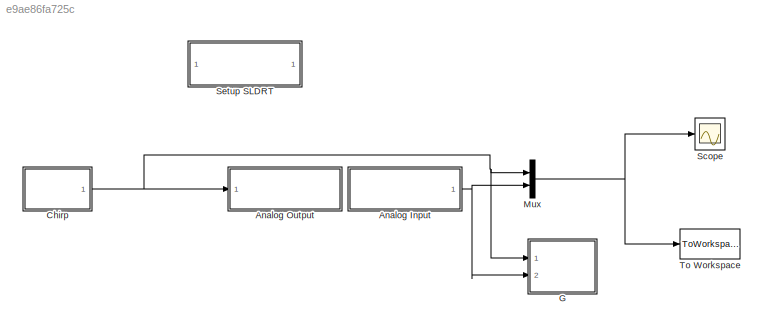
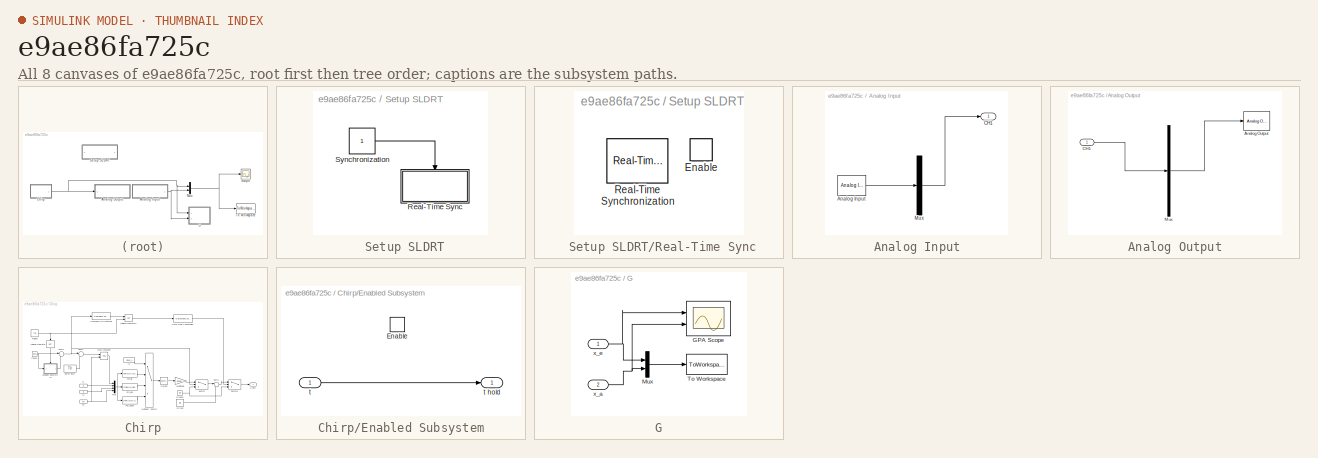
[diagram: thumbnail index - all 8 canvases of the model, root first then tree order]
MODEL slx_e9ae86fa725c
KIND model
CONFIG AbsTol = auto
CONFIG FixedStep = auto
CONFIG InitFcn = Ts=eval(get_param([bdroot,'/ Setup SLDRT'],'Ts'));
CONFIG MaxStep = auto
CONFIG MinStep = auto
CONFIG PostLoadFcn = try\nif isempty(which('ZHAWcbfcn'));\ncallback_fid07124=fopen('ZHAWcbfcn.m','w');\n[~]=fprintf(callback_fid07124,'%s',get_param([bdroot,'/ Setup SLDRT'],'ClipboardFcn'));\n[~]=fclose(callback_fid07124);\nsetpref('ZHAW_SLDRT_lib','cb_fcn',which('ZHAWcbfcn'))\nclear callback_fid07124\nend\ncatch\nclear callback_fid07124\nend\nTs=eval(get_param([bdroot,'/ Setup SLDRT'],'Ts'));
CONFIG RelTol = 1e-3
CONFIG SampleTimeConstraint = Unconstrained
CONFIG Solver = ode3
CONFIG SolverMode = Auto
CONFIG SolverName = ode3
CONFIG StartTime = 0.0
CONFIG StopTime = 10.0
BLOCK [SubSystem]  Setup SLDRT
  AttributesFormatString = Sample Time: %<Ts>
  ClipboardFcn = function varout = ZHAWcbfcn(mode,option)\n%ZHAWcbfcn callback function for ZHAW SLDRT library.\n% Version R2016a\n\n% Otto Fluder / ZHAW / IMS / <email>\n\nif 0\n    %set_param(gcb,'LinkStatus',getpref('ZHAW_SLDRT_lib','LibraryLinkStatus','none'));\n    %set_param(gcb,'OpenFcn','open_system(gcb,''Mask'')') %\n    %open_system(gcb,'Mask');\n    %set_param(gcb,'OpenFcn','')\n    return\nend\n\nif nargin==0\n    mo...<+60342ch>
  CopyFcn = try\n    if isempty(which('ZHAWcbfcn'));\n        callback_fid07124=fopen('ZHAWcbfcn.m','w');\n        [~]=fprintf(callback_fid07124,'%s',get_param(gcb,'ClipboardFcn'));\n        [~]=fclose(callback_fid07124);\n        setpref('ZHAW_SLDRT_lib','cb_fcn',which('ZHAWcbfcn'));\n        clear callback_fid07124;\n    end\ncatch\n    clear callback_fid07124;\nend\n\nset_param(gcb,'LinkStatus',getpref('ZHAW_SLDRT_lib...<+207ch>
  DeleteFcn = try\nset_param(gcs,'InitFcn','');\nset_param(gcs,'PostLoadFcn','');\nset_param(bdroot,'SimulationMode','normal')\nend
  DestroyFcn = try\nset_param(gcs,'CloseFcn','');\nend
  InitFcn = try\n    if isempty(which('ZHAWcbfcn'));\n        callback_fid07124=fopen('ZHAWcbfcn.m','w');\n        [~]=fprintf(callback_fid07124,'%s',get_param(gcb,'ClipboardFcn'));\n        [~]=fclose(callback_fid07124);\n        setpref('ZHAW_SLDRT_lib','cb_fcn',which('ZHAWcbfcn'));\n        clear callback_fid07124;\n    end\ncatch\n    clear callback_fid07124;\nend
  OpenFcn = try\n    if isempty(which('ZHAWcbfcn'));\n        callback_fid07124=fopen('ZHAWcbfcn.m','w');\n        [~]=fprintf(callback_fid07124,'%s',get_param(gcb,'ClipboardFcn'));\n        [~]=fclose(callback_fid07124);\n        setpref('ZHAW_SLDRT_lib','cb_fcn',which('ZHAWcbfcn'));\n        clear callback_fid07124;\n    end\ncatch\n    clear callback_fid07124;\nend\n\nTs=eval(get_param([bdroot,'/ Setup SLDRT'],'Ts'));...<+144ch>
  Ports = []
  RequestExecContextInheritance = off
  Variant = off
BLOCK [SubSystem]  Setup SLDRT/Real-Time Sync
  Ports = [0, 0, 1]
  RequestExecContextInheritance = off
  Variant = off
BLOCK [EnablePort]  Setup SLDRT/Real-Time Sync/Enable
  Ports = []
BLOCK [Reference]  Setup SLDRT/Real-Time Sync/Real-Time Synchronization  REF=sldrtlib/Real-Time
Synchronization
  Ports = []
  SourceBlock = sldrtlib/Real-Time\nSynchronization
  SourceType = Simulink Desktop Real-Time Synchronization
BLOCK [Constant]  Setup SLDRT/Synchronization
BLOCK [SubSystem] Analog Input
  AttributesFormatString = %<couple>
  CopyFcn = try\nZHAWcbfcn('CopyIOblock') \nend\nset_param(gcb,'OpenFcn','try ZHAWcbfcn(''openMask''); end')
  OpenFcn = try ZHAWcbfcn('openMask'); end
  Ports = [0, 1]
  RequestExecContextInheritance = off
  Variant = off
BLOCK [Reference] Analog Input/Analog Input  REF=sldrtlib/Analog Input
  AttributesFormatString = National Instruments\nPCIe-6321 [auto]
  Ports = [0, 1]
  SourceBlock = sldrtlib/Analog Input
  SourceType = Simulink Desktop Real-Time Analog Input
BLOCK [Outport] Analog Input/CH1
  IconDisplay = Port number
BLOCK [Demux] Analog Input/Mux
  DisplayOption = bar
  Outputs = 1
  Ports = [1, 1]
BLOCK [SubSystem] Analog Output
  CopyFcn = try\nZHAWcbfcn('CopyIOblock') \nend\nset_param(gcb,'OpenFcn','try ZHAWcbfcn(''openMask''); end')
  OpenFcn = try ZHAWcbfcn('openMask'); end
  Ports = [1]
  RequestExecContextInheritance = off
  Variant = off
BLOCK [Reference] Analog Output/Analog Output  REF=sldrtlib/Analog Output
  AttributesFormatString = National Instruments\nPCIe-6321 [auto]
  Ports = [1]
  SourceBlock = sldrtlib/Analog Output
  SourceType = Simulink Desktop Real-Time Analog Output
BLOCK [Inport] Analog Output/CH1
  IconDisplay = Port number
BLOCK [Mux] Analog Output/Mux
  DisplayOption = bar
  Inputs = 1
  Ports = [1, 1]
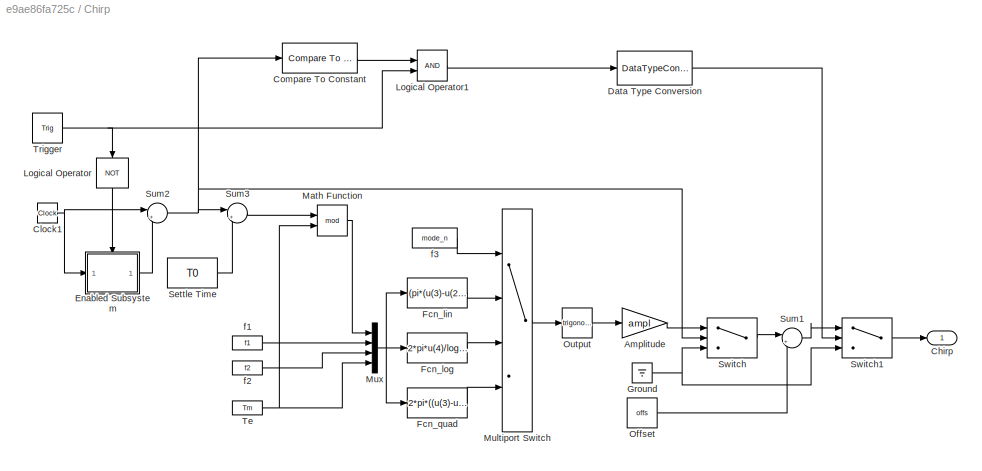
BLOCK [SubSystem] Chirp
  CopyFcn = set_param(gcb,'LinkStatus',getpref('ZHAW_SLDRT_lib','LibraryLinkStatus','none'));\ntry\n set_param(gcb,'f2',num2str(1/evalin('base','Ts')/2))\nend\ntry\n ZHAWcbfcn('SimTime');\nend\ntry\n ZHAWcbfcn('defaultchirp');\nend\nset_param(gcb,'OpenFcn','try ZHAWcbfcn(''openMask''); end')
  LoadFcn = try\n ZHAWcbfcn('defaultchirp');\nend
  OpenFcn = try ZHAWcbfcn('openMask'); end
  Ports = [0, 1]
  RequestExecContextInheritance = off
  Variant = off
BLOCK [Gain] Chirp/Amplitude
  Gain = ampl
  OutDataTypeStr = Inherit: Inherit via internal rule
  ParamDataTypeStr = Inherit: Inherit via internal rule
  SaturateOnIntegerOverflow = off
BLOCK [Outport] Chirp/Chirp
  IconDisplay = Port number
BLOCK [Clock] Chirp/Clock1
  DisableCoverage = on
BLOCK [Reference] Chirp/Compare To Constant  REF=simulink/Logic and Bit
Operations/Compare
To Constant
  Ports = [1, 1]
  SourceBlock = simulink/Logic and Bit\nOperations/Compare\nTo Constant
  SourceType = Compare To Constant
BLOCK [DataTypeConversion] Chirp/Data Type Conversion
  RndMeth = Floor
  SaturateOnIntegerOverflow = off
BLOCK [SubSystem] Chirp/Enabled Subsystem
  Ports = [1, 1, 1]
  RequestExecContextInheritance = off
  TreatAsAtomicUnit = on
  Variant = off
BLOCK [EnablePort] Chirp/Enabled Subsystem/Enable
  Ports = []
BLOCK [Inport] Chirp/Enabled Subsystem/t
  IconDisplay = Port number
BLOCK [Outport] Chirp/Enabled Subsystem/t hold
  IconDisplay = Port number
BLOCK [Fcn] Chirp/Fcn_lin
  Expr = (pi*(u(3)-u(2))/u(4)*u(1)+2*pi*u(2))*u(1)
BLOCK [Fcn] Chirp/Fcn_log
  Expr = 2*pi*u(4)/log(u(3)/u(2))*(u(2)*(u(3)/u(2))^(u(1)/u(4))-u(2))
BLOCK [Fcn] Chirp/Fcn_quad
  Expr = 2*pi*((u(3)-u(2))*u(4)^(-2)/(1+2)*u(1)^(1+2)+u(2)*u(1))
BLOCK [Ground] Chirp/Ground
BLOCK [Logic] Chirp/Logical Operator
  AllPortsSameDT = off
  Operator = NOT
  OutDataTypeStr = boolean
  Ports = [1, 1]
BLOCK [Logic] Chirp/Logical Operator1
  AllPortsSameDT = off
  OutDataTypeStr = boolean
  Ports = [2, 1]
BLOCK [Math] Chirp/Math Function
  Operator = mod
  Ports = [2, 1]
BLOCK [MultiPortSwitch] Chirp/Multiport Switch
  InputSameDT = off
  Ports = [4, 1]
  SaturateOnIntegerOverflow = off
BLOCK [Mux] Chirp/Mux
  DisplayOption = bar
  Ports = [4, 1]
BLOCK [Constant] Chirp/Offset
  Value = offs
BLOCK [Trigonometry] Chirp/Output
  Ports = [1, 1]
BLOCK [Constant] Chirp/Settle Time
  Value = T0
BLOCK [Sum] Chirp/Sum1
  IconShape = round
  InputSameDT = off
  Inputs = |++
  OutDataTypeStr = Inherit: Inherit via internal rule
  Ports = [2, 1]
  SaturateOnIntegerOverflow = off
BLOCK [Sum] Chirp/Sum2
  IconShape = round
  InputSameDT = off
  Inputs = |+-
  OutDataTypeStr = Inherit: Inherit via internal rule
  Ports = [2, 1]
  SaturateOnIntegerOverflow = off
BLOCK [Sum] Chirp/Sum3
  IconShape = round
  InputSameDT = off
  Inputs = |+-
  OutDataTypeStr = Inherit: Inherit via internal rule
  Ports = [2, 1]
  SaturateOnIntegerOverflow = off
BLOCK [Switch] Chirp/Switch
  InputSameDT = off
  SaturateOnIntegerOverflow = off
  Threshold = T0
BLOCK [Switch] Chirp/Switch1
  Criteria = u2 ~= 0
  InputSameDT = off
  SaturateOnIntegerOverflow = off
BLOCK [Constant] Chirp/Te
  Value = Tm
BLOCK [Constant] Chirp/Trigger
  Value = Trig
BLOCK [Constant] Chirp/f1
  Value = f1
BLOCK [Constant] Chirp/f2
  Value = f2
BLOCK [Constant] Chirp/f3
  Value = mode_n
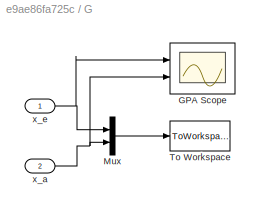
BLOCK [SubSystem] G
  CopyFcn = try\nZHAWcbfcn('copyGPA');\nend\nset_param(gcb,'OpenFcn','try ZHAWcbfcn(''openMask''); end')
  LoadFcn = try\n ZHAWcbfcn('default');\nend
  NameChangeFcn = try ZHAWcbfcn('namechangeGPA'); end
  OpenFcn = try ZHAWcbfcn('openMask'); end
  Ports = [2]
  RequestExecContextInheritance = off
  StopFcn = try\n ZHAWcbfcn('bode');\nend
  Variant = off
BLOCK [Scope] G/GPA Scope
  CopyFcn = try ZHAWcbfcn('copyScope'); end
  NameChangeFcn = try ZHAWcbfcn('namechangeScope'); end
  NumInputPorts = 2
  Ports = [2]
  ScopeSpecificationString = Simulink.scopes.TimeScopeBlockCfg('CurrentConfiguration', extmgr.ConfigurationSet(extmgr.Configuration('Core','General UI',true,'FigureColor',[0.941176470588235 0.941176470588235 0.941176470588235]),extmgr.Configuration('Core','Source UI',true),extmgr.Configuration('Sources','WiredSimulink',true,'DataLoggingDecimation','1','DataLoggingSaveFormat','StructureWithTime','DataLoggingVariableName','Scop...<+3377ch>
BLOCK [Mux] G/Mux
  DisplayOption = bar
  Inputs = 2
  Ports = [2, 1]
BLOCK [ToWorkspace] G/To Workspace
  MaxDataPoints = inf
  Ports = [1]
  SampleTime = Ts
  SaveFormat = Structure With Time
  VariableName = G_td
BLOCK [Inport] G/x_a
  IconDisplay = Port number
  Port = 2
BLOCK [Inport] G/x_e
  IconDisplay = Port number
BLOCK [Mux] Mux
  DisplayOption = bar
  Inputs = 2
  Ports = [2, 1]
BLOCK [Scope] Scope
  Ports = [1]
  ScopeSpecificationString = Simulink.scopes.TimeScopeBlockCfg('CurrentConfiguration', extmgr.ConfigurationSet(extmgr.Configuration('Core','General UI',true),extmgr.Configuration('Core','Source UI',true),extmgr.Configuration('Sources','WiredSimulink',true),extmgr.Configuration('Visuals','Time Domain',true,'SerializedDisplays',{struct('MinYLimReal','-11.07326','MaxYLimReal','10.72047','YLabelReal','','MinYLimMag','0.00000','Ma...<+1419ch>
BLOCK [ToWorkspace] To Workspace
  FixptAsFi = on
  MaxDataPoints = inf
  Ports = [1]
  SampleTime = -1
  Save2DSignal = 3-D array (concatenate along third dimension)
  SaveFormat = Structure With Time
  VariableName = simout
LINE  Setup SLDRT/Synchronization:1 ->  Setup SLDRT/Real-Time Sync:enable
LINE Analog Input/Analog Input:1 -> Analog Input/Mux:1
LINE Analog Input/Mux:1 -> Analog Input/CH1:1
NET Analog Input:1 -> G:2, Mux:2
LINE Analog Output/CH1:1 -> Analog Output/Mux:1
LINE Analog Output/Mux:1 -> Analog Output/Analog Output:1
LINE Chirp/Amplitude:1 -> Chirp/Switch:1
NET Chirp/Clock1:1 -> Chirp/Enabled Subsystem:1, Chirp/Sum2:1
LINE Chirp/Compare To Constant:1 -> Chirp/Logical Operator1:1
LINE Chirp/Data Type Conversion:1 -> Chirp/Switch1:2
LINE Chirp/Enabled Subsystem/t:1 -> Chirp/Enabled Subsystem/t hold:1
LINE Chirp/Enabled Subsystem:1 -> Chirp/Sum2:2
LINE Chirp/Fcn_lin:1 -> Chirp/Multiport Switch:2
LINE Chirp/Fcn_log:1 -> Chirp/Multiport Switch:3
LINE Chirp/Fcn_quad:1 -> Chirp/Multiport Switch:4
NET Chirp/Ground:1 -> Chirp/Switch1:3, Chirp/Switch:3
LINE Chirp/Logical Operator1:1 -> Chirp/Data Type Conversion:1
LINE Chirp/Logical Operator:1 -> Chirp/Enabled Subsystem:enable
LINE Chirp/Math Function:1 -> Chirp/Mux:1
LINE Chirp/Multiport Switch:1 -> Chirp/Output:1
NET Chirp/Mux:1 -> Chirp/Fcn_lin:1, Chirp/Fcn_log:1, Chirp/Fcn_quad:1
LINE Chirp/Offset:1 -> Chirp/Sum1:2
LINE Chirp/Output:1 -> Chirp/Amplitude:1
LINE Chirp/Settle Time:1 -> Chirp/Sum3:2
LINE Chirp/Sum1:1 -> Chirp/Switch1:1
NET Chirp/Sum2:1 -> Chirp/Compare To Constant:1, Chirp/Sum3:1, Chirp/Switch:2
LINE Chirp/Sum3:1 -> Chirp/Math Function:1
LINE Chirp/Switch1:1 -> Chirp/Chirp:1
LINE Chirp/Switch:1 -> Chirp/Sum1:1
NET Chirp/Te:1 -> Chirp/Math Function:2, Chirp/Mux:4
NET Chirp/Trigger:1 -> Chirp/Logical Operator1:2, Chirp/Logical Operator:1
LINE Chirp/f1:1 -> Chirp/Mux:2
LINE Chirp/f2:1 -> Chirp/Mux:3
LINE Chirp/f3:1 -> Chirp/Multiport Switch:1
NET Chirp:1 -> Analog Output:1, G:1, Mux:1
LINE G/Mux:1 -> G/To Workspace:1
NET G/x_a:1 -> G/GPA Scope:2, G/Mux:2
NET G/x_e:1 -> G/GPA Scope:1, G/Mux:1
NET Mux:1 -> Scope:1, To Workspace:1
note: NET lines group one-source signal fan-out (src -> all destinations, sorted); 1:1 wires keep LINE
